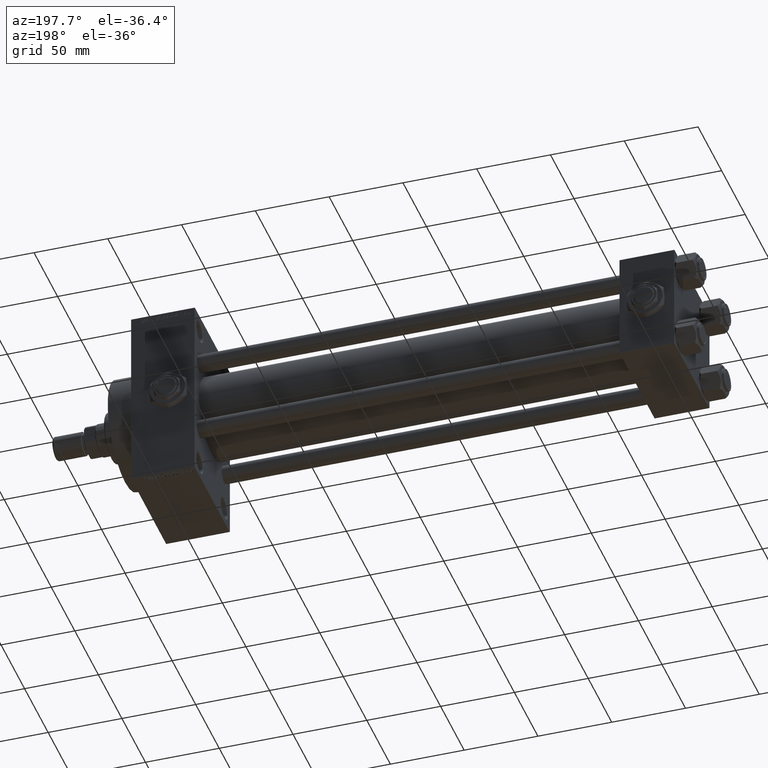
[diagram: clean part render]
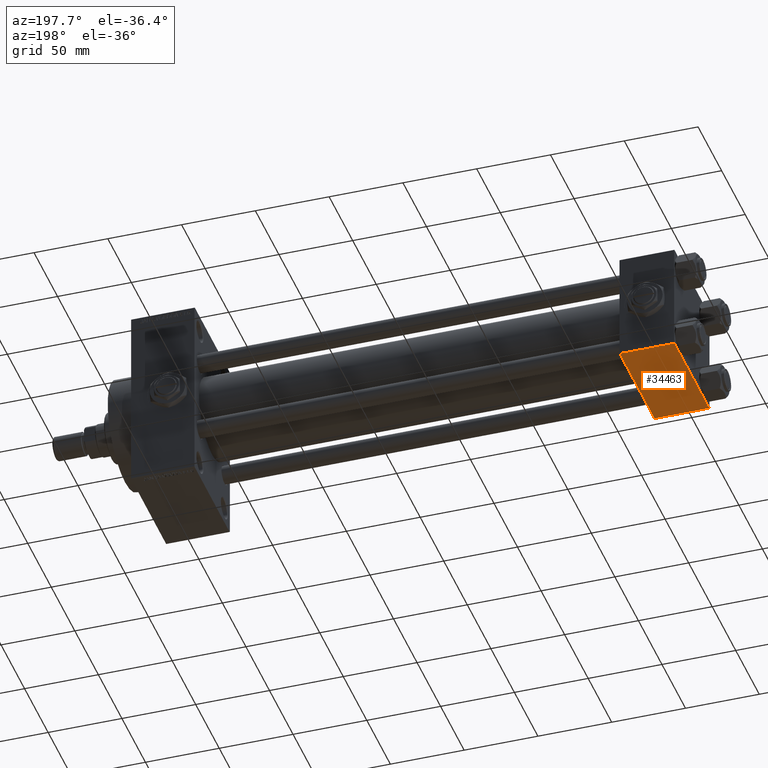
[diagram: same view with one face highlighted and labeled with its STEP entity id]
A machine part, auxiliary view. The second image highlights one B-rep face of the part: STEP entity #34463.
In plain terms, the highlighted planar face has unit normal (0, 0, -1).
Its self-contained STEP definition (entity closure, byte-faithful):
#3014 = VECTOR ( 'NONE', #33091, 1000.000000000000000 ) ;
#7845 = LINE ( 'NONE', #38921, #10824 ) ;
#9256 = FACE_OUTER_BOUND ( 'NONE', #14452, .T. ) ;
#10824 = VECTOR ( 'NONE', #35364, 1000.000000000000000 ) ;
#10951 = CARTESIAN_POINT ( 'NONE',  ( 0.000000000000000000, -37.00000000000002132, -37.50000000000000711 ) ) ;
#13242 = CARTESIAN_POINT ( 'NONE',  ( 37.00000000000000000, 37.49999999999999289, -37.50000000000000000 ) ) ;
#14452 = EDGE_LOOP ( 'NONE', ( #30142, #33600, #49194, #30292 ) ) ;
#14572 = VERTEX_POINT ( 'NONE', #36285 ) ;
#15375 = VECTOR ( 'NONE', #37939, 1000.000000000000000 ) ;
#16285 = EDGE_CURVE ( 'NONE', #14572, #46916, #7845, .T. ) ;
#17686 = CARTESIAN_POINT ( 'NONE',  ( 0.000000000000000000, -37.00000000000002132, -37.50000000000000711 ) ) ;
#17835 = DIRECTION ( 'NONE',  ( 0.000000000000000000, 1.000000000000000000, 9.251858538542972814E-17 ) ) ;
#20544 = CARTESIAN_POINT ( 'NONE',  ( 37.00000000000000000, 36.99999999999997868, -37.50000000000000000 ) ) ;
#21081 = EDGE_CURVE ( 'NONE', #14572, #42191, #32420, .T. ) ;
#22774 = LINE ( 'NONE', #13242, #15375 ) ;
#24666 = PLANE ( 'NONE',  #27286 ) ;
#27286 = AXIS2_PLACEMENT_3D ( 'NONE', #47652, #32735, #17835 ) ;
#30142 = ORIENTED_EDGE ( 'NONE', *, *, #16285, .F. ) ;
#30292 = ORIENTED_EDGE ( 'NONE', *, *, #49815, .T. ) ;
#32420 = LINE ( 'NONE', #20544, #46368 ) ;
#32735 = DIRECTION ( 'NONE',  ( 0.000000000000000000, 9.251858538542972814E-17, -1.000000000000000000 ) ) ;
#33091 = DIRECTION ( 'NONE',  ( -1.000000000000000000, 0.000000000000000000, 0.000000000000000000 ) ) ;
#33600 = ORIENTED_EDGE ( 'NONE', *, *, #21081, .T. ) ;
#34463 = ADVANCED_FACE ( 'NONE', ( #9256 ), #24666, .T. ) ;
#34859 = CARTESIAN_POINT ( 'NONE',  ( 37.00000000000000000, 36.99999999999997868, -37.50000000000000000 ) ) ;
#35364 = DIRECTION ( 'NONE',  ( 0.000000000000000000, -1.000000000000000000, -9.251858538542972814E-17 ) ) ;
#36285 = CARTESIAN_POINT ( 'NONE',  ( 0.000000000000000000, 36.99999999999997868, -37.50000000000000000 ) ) ;
#36460 = DIRECTION ( 'NONE',  ( 1.000000000000000000, 0.000000000000000000, 0.000000000000000000 ) ) ;
#36885 = LINE ( 'NONE', #17686, #3014 ) ;
#37939 = DIRECTION ( 'NONE',  ( 0.000000000000000000, -1.000000000000000000, -9.251858538542972814E-17 ) ) ;
#38921 = CARTESIAN_POINT ( 'NONE',  ( 0.000000000000000000, 37.49999999999999289, -37.50000000000000000 ) ) ;
#40529 = CARTESIAN_POINT ( 'NONE',  ( 37.00000000000000000, -37.00000000000002132, -37.50000000000000711 ) ) ;
#42191 = VERTEX_POINT ( 'NONE', #34859 ) ;
#43002 = EDGE_CURVE ( 'NONE', #42191, #46758, #22774, .T. ) ;
#46368 = VECTOR ( 'NONE', #36460, 1000.000000000000000 ) ;
#46758 = VERTEX_POINT ( 'NONE', #40529 ) ;
#46916 = VERTEX_POINT ( 'NONE', #10951 ) ;
#47652 = CARTESIAN_POINT ( 'NONE',  ( 37.00000000000000000, 37.49999999999999289, -37.50000000000000000 ) ) ;
#49194 = ORIENTED_EDGE ( 'NONE', *, *, #43002, .T. ) ;
#49815 = EDGE_CURVE ( 'NONE', #46758, #46916, #36885, .T. ) ;